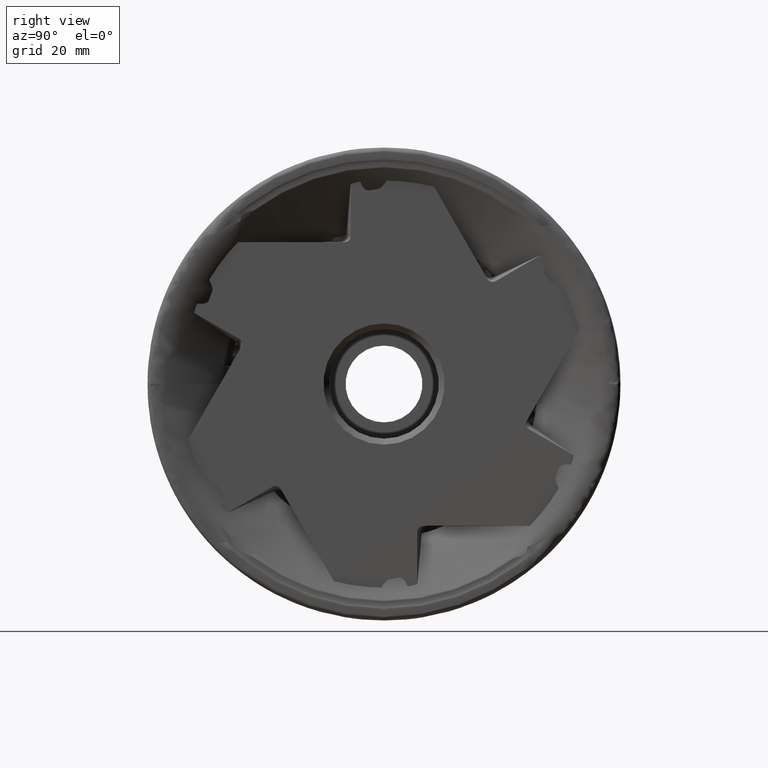
[diagram: clean part render]
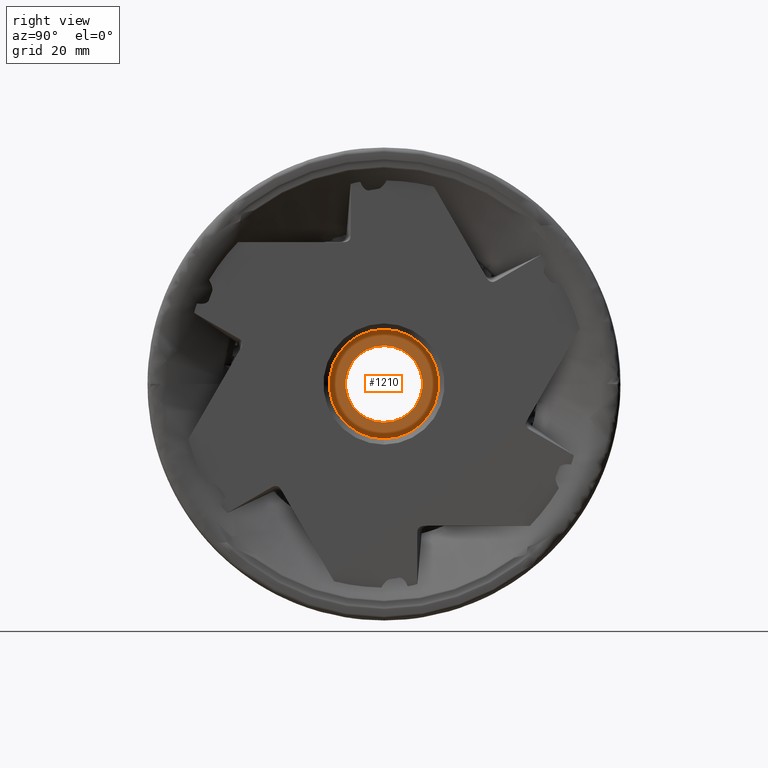
[diagram: same view with one face highlighted and labeled with its STEP entity id]
A machine part, right view. The second image highlights one B-rep face of the part: STEP entity #1210.
In plain terms, the highlighted planar face has unit normal (-1, 0, 0).
Its self-contained STEP definition (entity closure, byte-faithful):
#620 = ORIENTED_EDGE ( 'NONE', *, *, #9091, .F. ) ;
#1210 = ADVANCED_FACE ( 'NONE', ( #19512, #4904 ), #10969, .F. ) ;
#1659 = VERTEX_POINT ( 'NONE', #16081 ) ;
#2092 = AXIS2_PLACEMENT_3D ( 'NONE', #4920, #18490, #9328 ) ;
#2415 = AXIS2_PLACEMENT_3D ( 'NONE', #14575, #5561, #7085 ) ;
#2840 = EDGE_LOOP ( 'NONE', ( #12977, #620 ) ) ;
#3572 = EDGE_CURVE ( 'NONE', #1659, #11014, #9772, .T. ) ;
#3818 = AXIS2_PLACEMENT_3D ( 'NONE', #5627, #4065, #7273 ) ;
#4058 = CIRCLE ( 'NONE', #2415, 6.499999999999998200 ) ;
#4065 = DIRECTION ( 'NONE',  ( 1.000000000000000000, -0.0000000000000000000, -0.0000000000000000000 ) ) ;
#4734 = CARTESIAN_POINT ( 'NONE',  ( -14.50000000000000000, 1.132798289211301500E-015, 9.249999999999998200 ) ) ;
#4904 = FACE_OUTER_BOUND ( 'NONE', #5418, .T. ) ;
#4920 = CARTESIAN_POINT ( 'NONE',  ( -14.50000000000000000, 9.249999999999998200, 0.0000000000000000000 ) ) ;
#4937 = CIRCLE ( 'NONE', #5223, 9.249999999999998200 ) ;
#5223 = AXIS2_PLACEMENT_3D ( 'NONE', #12644, #15688, #6655 ) ;
#5418 = EDGE_LOOP ( 'NONE', ( #13909, #6173 ) ) ;
#5561 = DIRECTION ( 'NONE',  ( 1.000000000000000000, -0.0000000000000000000, -0.0000000000000000000 ) ) ;
#5627 = CARTESIAN_POINT ( 'NONE',  ( -14.50000000000000000, 0.0000000000000000000, 0.0000000000000000000 ) ) ;
#6173 = ORIENTED_EDGE ( 'NONE', *, *, #9539, .T. ) ;
#6394 = CIRCLE ( 'NONE', #3818, 9.249999999999998200 ) ;
#6655 = DIRECTION ( 'NONE',  ( 0.0000000000000000000, 0.0000000000000000000, -1.000000000000000000 ) ) ;
#7085 = DIRECTION ( 'NONE',  ( 0.0000000000000000000, 0.0000000000000000000, -1.000000000000000000 ) ) ;
#7273 = DIRECTION ( 'NONE',  ( 0.0000000000000000000, 0.0000000000000000000, -1.000000000000000000 ) ) ;
#8170 = AXIS2_PLACEMENT_3D ( 'NONE', #8660, #8789, #11751 ) ;
#8660 = CARTESIAN_POINT ( 'NONE',  ( -14.50000000000000000, 0.0000000000000000000, 0.0000000000000000000 ) ) ;
#8789 = DIRECTION ( 'NONE',  ( 1.000000000000000000, -0.0000000000000000000, -0.0000000000000000000 ) ) ;
#9091 = EDGE_CURVE ( 'NONE', #11014, #1659, #4058, .T. ) ;
#9328 = DIRECTION ( 'NONE',  ( 0.0000000000000000000, 0.0000000000000000000, 1.000000000000000000 ) ) ;
#9539 = EDGE_CURVE ( 'NONE', #10498, #11340, #6394, .T. ) ;
#9772 = CIRCLE ( 'NONE', #8170, 6.499999999999998200 ) ;
#10498 = VERTEX_POINT ( 'NONE', #4734 ) ;
#10969 = PLANE ( 'NONE',  #2092 ) ;
#11014 = VERTEX_POINT ( 'NONE', #12781 ) ;
#11030 = EDGE_CURVE ( 'NONE', #11340, #10498, #4937, .T. ) ;
#11340 = VERTEX_POINT ( 'NONE', #18194 ) ;
#11751 = DIRECTION ( 'NONE',  ( 0.0000000000000000000, 0.0000000000000000000, -1.000000000000000000 ) ) ;
#12644 = CARTESIAN_POINT ( 'NONE',  ( -14.50000000000000000, 0.0000000000000000000, 0.0000000000000000000 ) ) ;
#12781 = CARTESIAN_POINT ( 'NONE',  ( -14.50000000000000000, 7.960204194457794500E-016, 6.499999999999999100 ) ) ;
#12977 = ORIENTED_EDGE ( 'NONE', *, *, #3572, .F. ) ;
#13909 = ORIENTED_EDGE ( 'NONE', *, *, #11030, .T. ) ;
#14575 = CARTESIAN_POINT ( 'NONE',  ( -14.50000000000000000, 0.0000000000000000000, 0.0000000000000000000 ) ) ;
#15688 = DIRECTION ( 'NONE',  ( 1.000000000000000000, -0.0000000000000000000, -0.0000000000000000000 ) ) ;
#16081 = CARTESIAN_POINT ( 'NONE',  ( -14.50000000000000000, 0.0000000000000000000, -6.499999999999998200 ) ) ;
#18194 = CARTESIAN_POINT ( 'NONE',  ( -14.50000000000000000, 0.0000000000000000000, -9.249999999999998200 ) ) ;
#18490 = DIRECTION ( 'NONE',  ( -1.000000000000000000, 0.0000000000000000000, 0.0000000000000000000 ) ) ;
#19512 = FACE_BOUND ( 'NONE', #2840, .T. ) ;